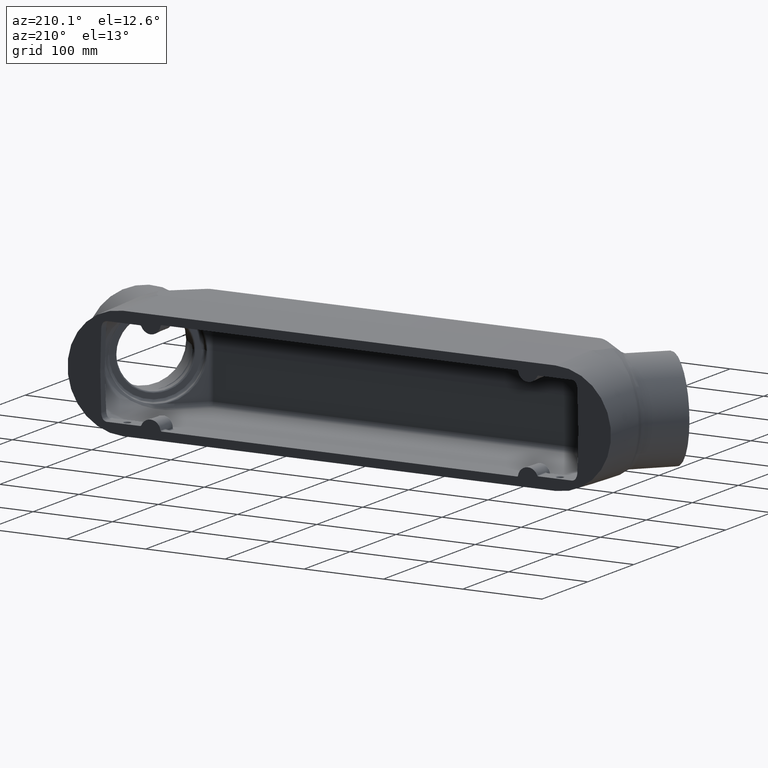
[diagram: clean part render]
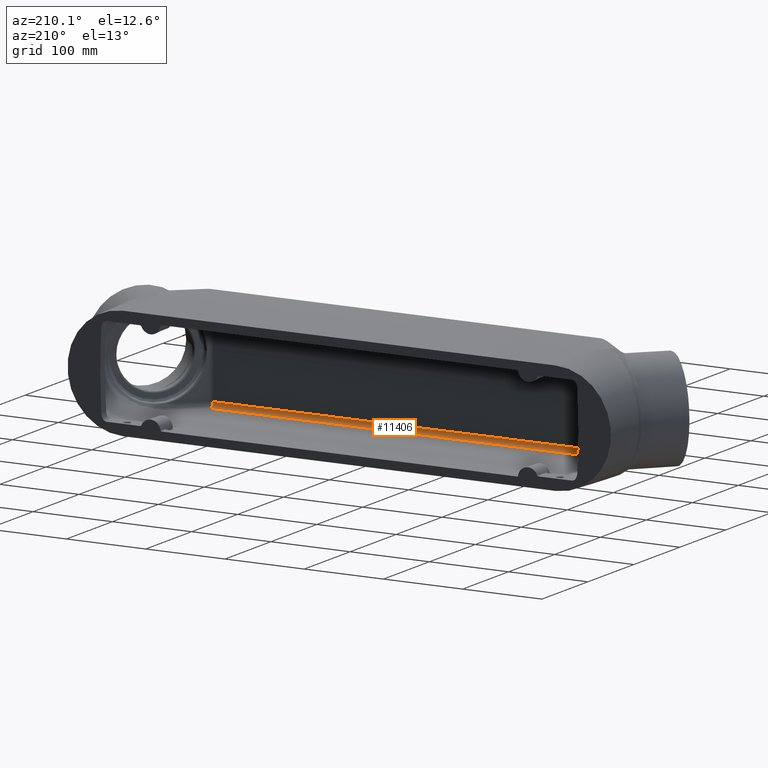
[diagram: same view with one face highlighted and labeled with its STEP entity id]
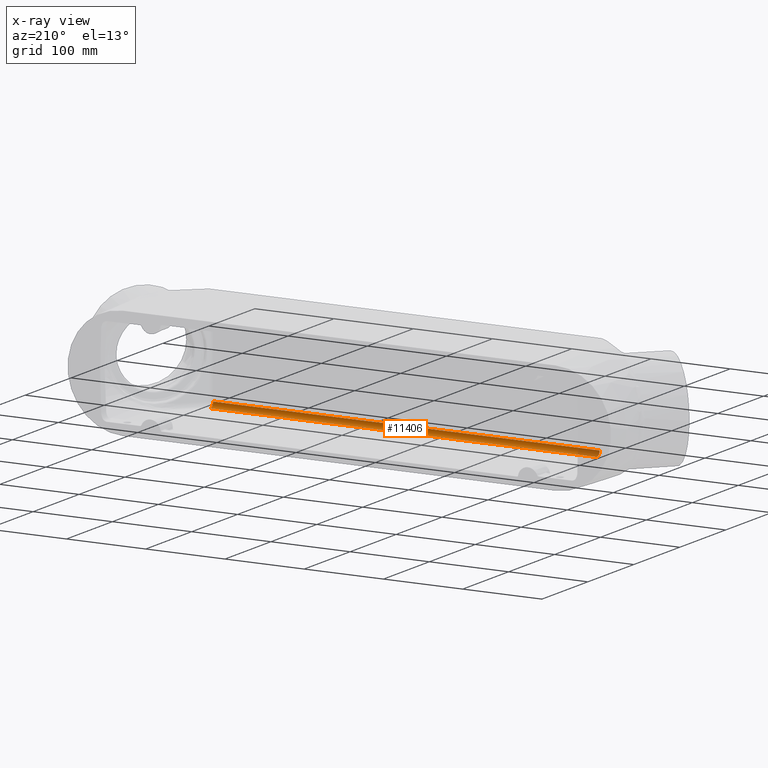
[diagram: x-ray of the same camera — body ghosted, the highlighted face saturated]
A machine part, auxiliary view. The second image highlights one B-rep face of the part: STEP entity #11406.
The next image is the same camera in x-ray: the body ghosted, the highlighted face saturated — about 5% of this face is hidden behind the body in this view.
In plain terms, the highlighted cylindrical surface (edge-blend (fillet) strip) has radius 6.35 mm, axis along (-1, -0, 0).
Its self-contained STEP definition (entity closure, byte-faithful):
#165=CIRCLE('',#12055,0.25);
#168=CIRCLE('',#12060,0.25);
#827=CYLINDRICAL_SURFACE('',#12118,0.25);
#1096=FACE_OUTER_BOUND('',#1790,.T.);
#1790=EDGE_LOOP('',(#8503,#8504,#8505,#8506));
#2462=LINE('',#22175,#3272);
#2484=LINE('',#22545,#3294);
#3272=VECTOR('',#13192,0.393700787401575);
#3294=VECTOR('',#13336,0.393700787401575);
#4685=VERTEX_POINT('',#18421);
#4690=VERTEX_POINT('',#18432);
#4825=VERTEX_POINT('',#22170);
#4826=VERTEX_POINT('',#22177);
#6140=EDGE_CURVE('',#4685,#4825,#165,.F.);
#6143=EDGE_CURVE('',#4690,#4685,#2462,.T.);
#6145=EDGE_CURVE('',#4826,#4690,#168,.F.);
#6208=EDGE_CURVE('',#4825,#4826,#2484,.T.);
#8503=ORIENTED_EDGE('',*,*,#6145,.T.);
#8504=ORIENTED_EDGE('',*,*,#6143,.T.);
#8505=ORIENTED_EDGE('',*,*,#6140,.T.);
#8506=ORIENTED_EDGE('',*,*,#6208,.T.);
#11406=ADVANCED_FACE('',(#1096),#827,.F.);
#12055=AXIS2_PLACEMENT_3D('',#22171,#13185,#13186);
#12060=AXIS2_PLACEMENT_3D('',#22179,#13197,#13198);
#12118=AXIS2_PLACEMENT_3D('',#22544,#13334,#13335);
#13185=DIRECTION('center_axis',(-1.,-2.93011281105029E-16,1.11896493820488E-14));
#13186=DIRECTION('ref_axis',(0.,-0.999657324975557,-0.0261769483078729));
#13192=DIRECTION('',(1.,1.21308546375587E-16,0.));
#13197=DIRECTION('center_axis',(1.,-5.59674255491622E-15,0.));
#13198=DIRECTION('ref_axis',(0.,0.,-1.));
#13334=DIRECTION('center_axis',(-1.,-1.21308546375587E-16,0.));
#13335=DIRECTION('ref_axis',(0.,-0.69779045984168,-0.716301943424655));
#13336=DIRECTION('',(-1.,-1.21308546375587E-16,0.));
#18421=CARTESIAN_POINT('',(9.60091239889158,-2.66047861963954,-2.22529423707697));
#18432=CARTESIAN_POINT('',(-9.60091239889158,-2.66047861963954,-2.22529423707697));
#22170=CARTESIAN_POINT('',(9.60091239889158,-2.41056428839565,-2.46875));
#22171=CARTESIAN_POINT('Origin',(9.60091239889158,-2.41056428839565,-2.21875));
#22175=CARTESIAN_POINT('',(-4.86428355018385,-2.66047861963954,-2.22529423707697));
#22177=CARTESIAN_POINT('',(-9.60091239889157,-2.41056428839565,-2.46875));
#22179=CARTESIAN_POINT('Origin',(-9.60091239889157,-2.41056428839565,-2.21875));
#22544=CARTESIAN_POINT('Origin',(-4.86428355018385,-2.41056428839565,-2.21875));
#22545=CARTESIAN_POINT('',(-4.86428355018385,-2.41056428839565,-2.46875));